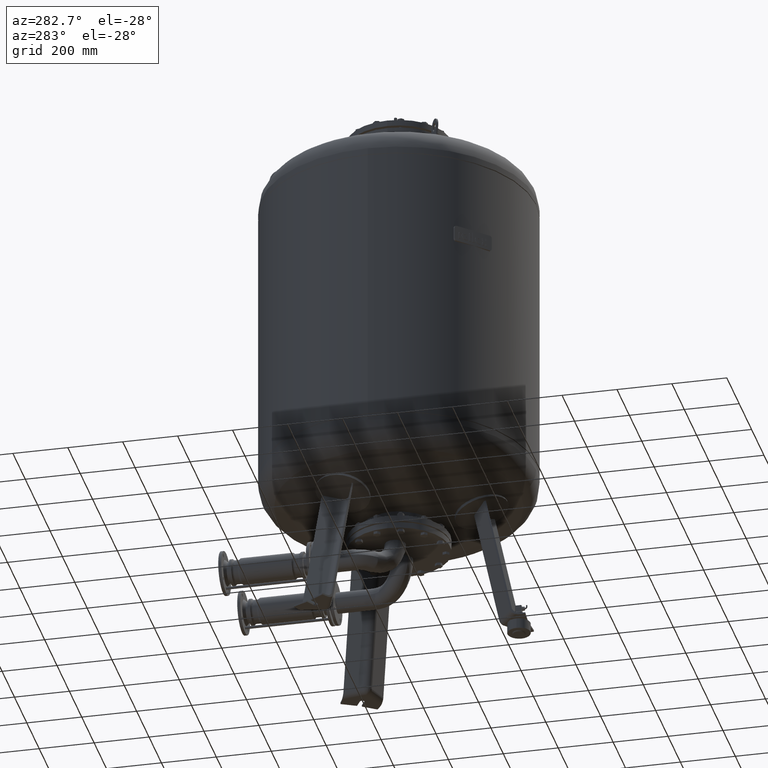
[diagram: clean part render]
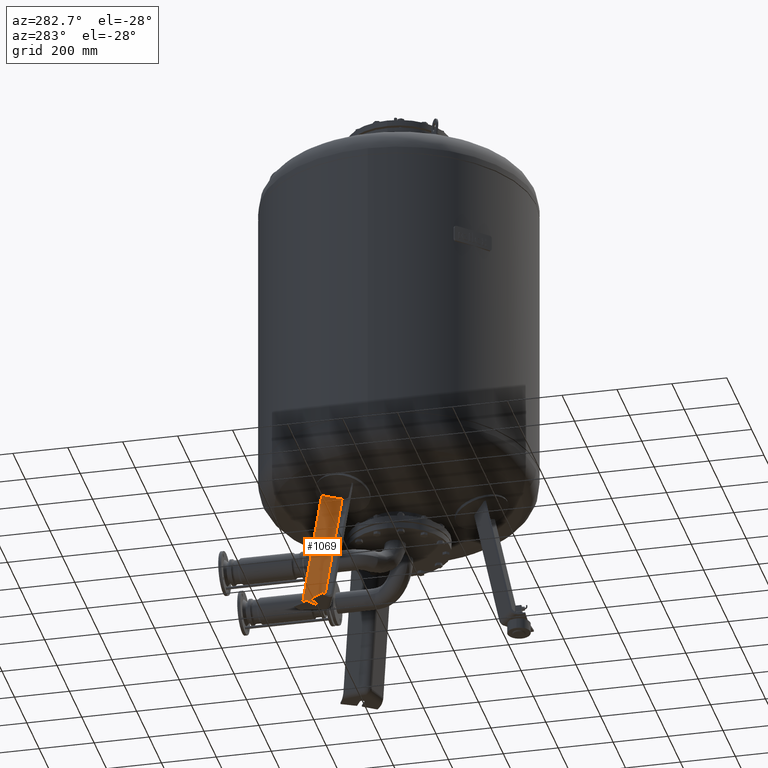
[diagram: same view with one face highlighted and labeled with its STEP entity id]
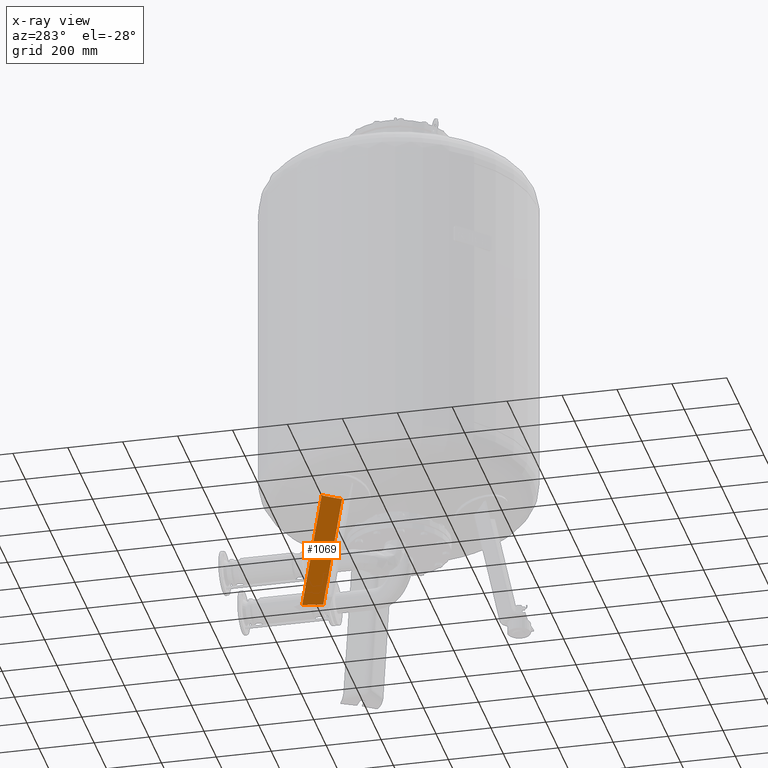
[diagram: x-ray of the same camera — body ghosted, the highlighted face saturated]
A machine part, auxiliary view. The second image highlights one B-rep face of the part: STEP entity #1069.
The next image is the same camera in x-ray: the body ghosted, the highlighted face saturated — about 0% of this face is hidden behind the body in this view.
In plain terms, the highlighted planar face has unit normal (-0.9697, -0.1854, 0.1588).
Its self-contained STEP definition (entity closure, byte-faithful):
#213=CARTESIAN_POINT('',(-319.830394192792990,203.286932639186120,27.029948423057292));
#214=VERTEX_POINT('',#213);
#546=CARTESIAN_POINT('',(-333.903618473282510,276.885267289667350,27.029948423057292));
#547=VERTEX_POINT('',#546);
#548=CARTESIAN_POINT('',(-319.830394192792990,203.286932639186120,27.029948423057292));
#549=DIRECTION('',(-0.187813845079450,0.982204642422582,0.0));
#550=VECTOR('',#549,74.931772333057665);
#551=LINE('',#548,#550);
#552=EDGE_CURVE('',#214,#547,#551,.T.);
#782=CARTESIAN_POINT('',(-245.347396508302890,225.757308699770050,508.106215259451630));
#783=VERTEX_POINT('',#782);
#793=CARTESIAN_POINT('',(-234.534818756953260,154.041509200619940,490.392952149244080));
#794=VERTEX_POINT('',#793);
#795=CARTESIAN_POINT('',(-42.678741161069695,-17.943416016653856,1461.157558058853700));
#796=DIRECTION('',(0.969740897595359,0.185430570007244,-0.158802063077708));
#797=DIRECTION('',(0.180056805991956,-0.103955845408880,0.978147600733806));
#798=AXIS2_PLACEMENT_3D('',#795,#796,#797);
#799=CIRCLE('',#798,1004.376169121564000);
#800=EDGE_CURVE('',#794,#783,#799,.T.);
#1042=CARTESIAN_POINT('',(-234.534818756953260,154.041509200619940,490.392952149244080));
#1043=DIRECTION('',(-0.180056805991956,0.103955845408880,-0.978147600733805));
#1044=VECTOR('',#1043,473.714808867876630);
#1045=LINE('',#1042,#1044);
#1046=EDGE_CURVE('',#794,#214,#1045,.T.);
#1053=CARTESIAN_POINT('',(-329.588085764893490,190.287770038054840,-47.735293817669401));
#1054=DIRECTION('',(-0.969740897595359,-0.185430570007244,0.158802063077708));
#1055=DIRECTION('',(0.180056805991956,-0.103955845408880,0.978147600733806));
#1056=AXIS2_PLACEMENT_3D('',#1053,#1054,#1055);
#1057=PLANE('',#1056);
#1058=ORIENTED_EDGE('',*,*,#1046,.F.);
#1059=ORIENTED_EDGE('',*,*,#800,.T.);
#1060=CARTESIAN_POINT('',(-333.903618473282510,276.885267289667350,27.029948423057292));
#1061=DIRECTION('',(0.180056805991956,-0.103955845408880,0.978147600733806));
#1062=VECTOR('',#1061,491.823796812966980);
#1063=LINE('',#1060,#1062);
#1064=EDGE_CURVE('',#547,#783,#1063,.T.);
#1065=ORIENTED_EDGE('',*,*,#1064,.F.);
#1066=ORIENTED_EDGE('',*,*,#552,.F.);
#1067=EDGE_LOOP('',(#1058,#1059,#1065,#1066));
#1068=FACE_OUTER_BOUND('',#1067,.T.);
#1069=ADVANCED_FACE('',(#1068),#1057,.T.);